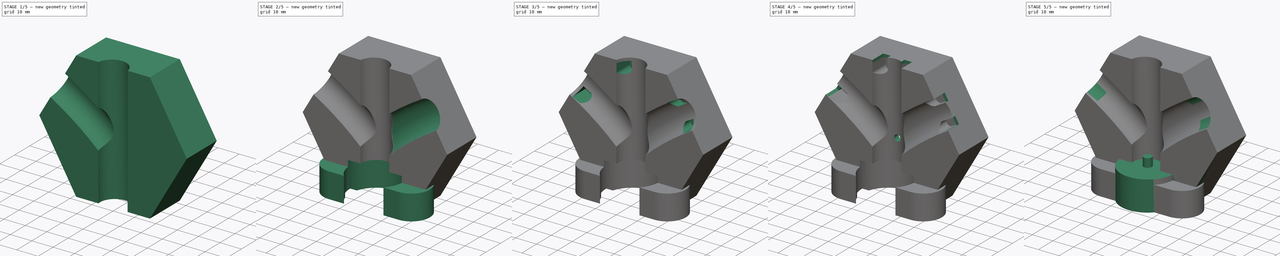
[diagram: build sequence overview — one tinted view per stage of 5, left to right]
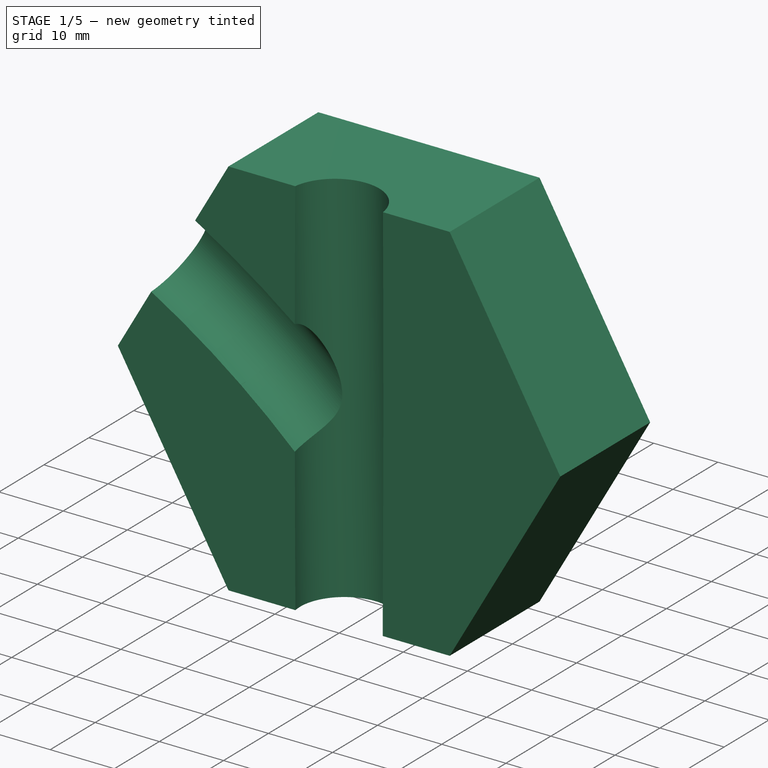
[diagram: stage 1 of 5 — iso view after this stage's code; geometry added in this stage tinted green]
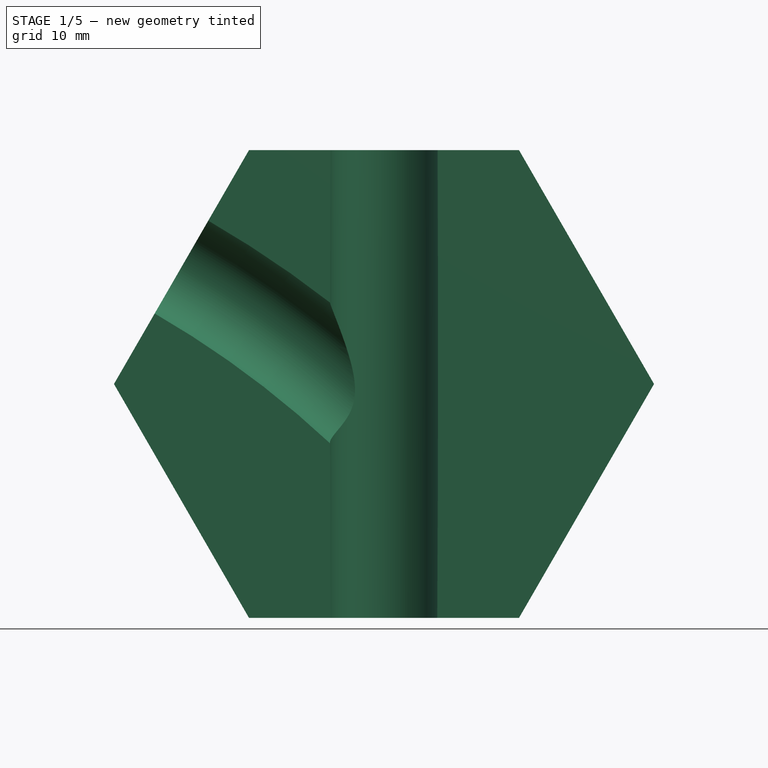
[diagram: stage 1 of 5 — front view after this stage's code; geometry added in this stage tinted green]
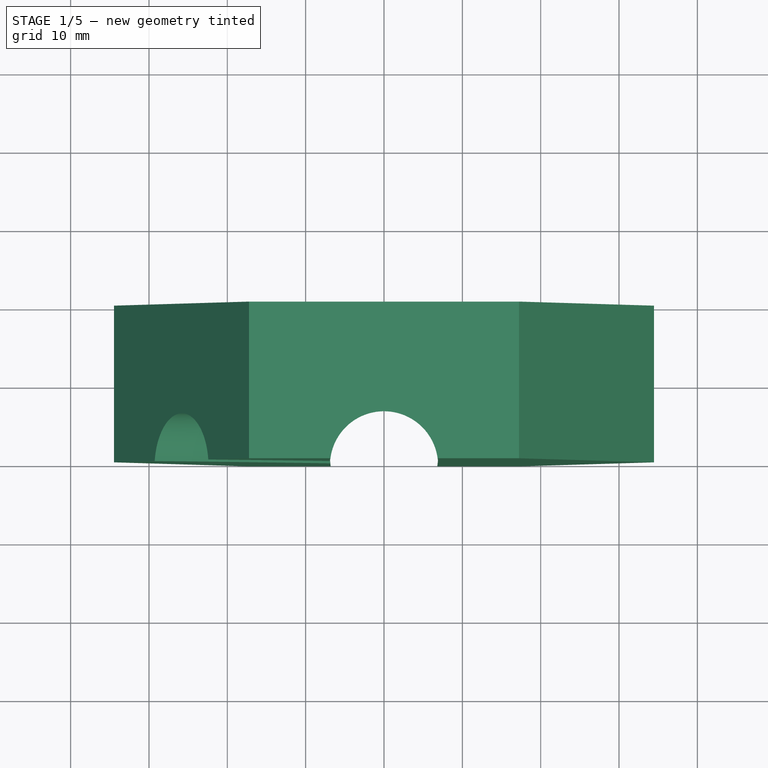
[diagram: stage 1 of 5 — top view after this stage's code; geometry added in this stage tinted green]
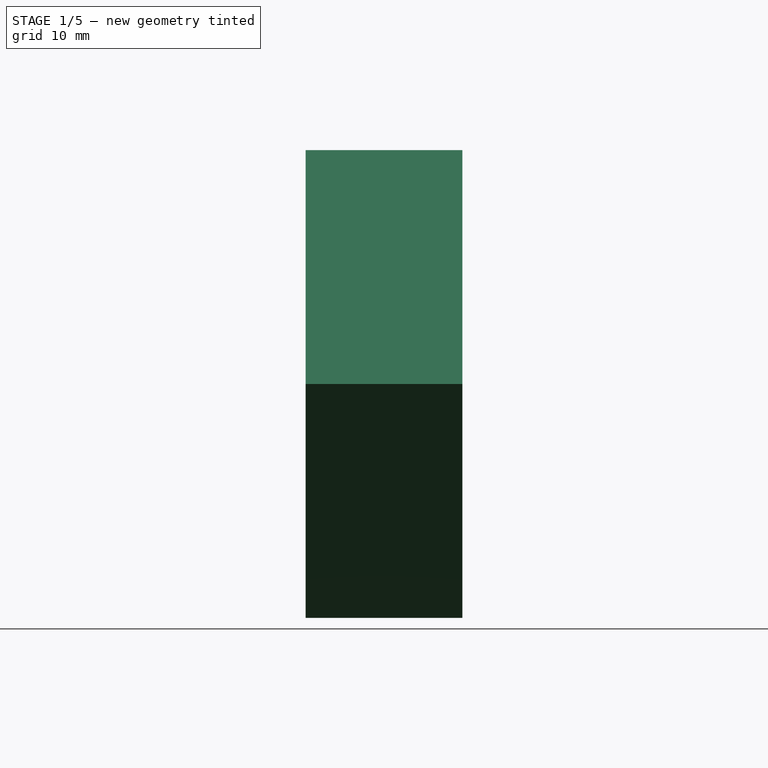
[diagram: stage 1 of 5 — right view after this stage's code; geometry added in this stage tinted green]
FCSTD DOCUMENT  (FreeCAD 0.19R24212 (Git))
Label: accel1
License: All rights reserved
LicenseURL: http://en.wikipedia.org/wiki/All_rights_reserved
objects: Sketcher::SketchObject×19, PartDesign::Pocket×9, PartDesign::Pad×5, PartDesign::SubtractivePipe×2, PartDesign::Body×2, PartDesign::Chamfer×1
note: 55 computed .brp shape members not serialized (recipe doc carries the construction recipe); baked Part::Feature solids carry a one-line shape summary decoded from their .brp

FEATURE [Sketcher::SketchObject] Sketch
  FullyConstrained = false
  MapMode = 5
  Placement = pos=(0,0,0) rot=(1,0,0;1.5708rad)
  Support = -> [XZ_Plane]
  sketch-geometry (7):
    g0: LineSegment StartX=34.4678 StartY=-3.6e-15 StartZ=0 EndX=17.2339 EndY=29.85 EndZ=0
    g1: LineSegment StartX=17.2339 StartY=29.85 StartZ=0 EndX=-17.2339 EndY=29.85 EndZ=0
    g2: LineSegment StartX=-17.2339 StartY=29.85 StartZ=0 EndX=-34.4678 EndY=3.6e-15 EndZ=0
    g3: LineSegment StartX=-34.4678 StartY=3.6e-15 StartZ=0 EndX=-17.2339 EndY=-29.85 EndZ=0
    g4: LineSegment StartX=-17.2339 StartY=-29.85 StartZ=0 EndX=17.2339 EndY=-29.85 EndZ=0
    g5: LineSegment StartX=17.2339 StartY=-29.85 StartZ=0 EndX=34.4678 EndY=-3.6e-15 EndZ=0
    g6: Circle CenterX=0 CenterY=0 CenterZ=0 NormalX=0 NormalY=0 NormalZ=1 AngleXU=0 Radius=34.4678
  constraints (16):
    c: Coincident(g0,g1)
    c: Coincident(g1,g2)
    c: Coincident(g2,g3)
    c: Coincident(g3,g4)
    c: Coincident(g4,g5)
    c: Coincident(g5,g0)
    c: Equal(g0, g1-g5) x5
    c: PointOnObject(g0,g6)
    c: PointOnObject(g1,g6)
    c: PointOnObject(g2,g6)
    c: PointOnObject(g3,g6)
    c: PointOnObject(g4,g6)
    c: PointOnObject(g5,g6)
    c: Coincident(g6,g-1)
    c: PointOnObject(g5,g-1)
    c: DistanceY(g4,g0) = 59.7
FEATURE [PartDesign::Pad] Pad
  Direction = (1,1,1)
  Length = 20
  Length2 = 100
  Midplane = true
  Placement = pos=(0,0,0) rot=(1,0,0;1.5708rad)
  Profile = -> Sketch
  Type = 0
FEATURE [Sketcher::SketchObject] Sketch001  label="Rinne1"
  AttachmentOffset = pos=(0,0,0) rot=(1,0,0;-0.034907rad)
  ExternalGeometry = -> [Pad]
  FullyConstrained = false
  MapMode = 5
  Placement = pos=(6.3e-15,0,29.85) rot=(0,0.017452,-0.999848;3.14159rad)
  Support = -> [Pad]
  sketch-geometry (2):
    g0: GeomPoint X=0 Y=4 Z=0
    g1: Circle CenterX=0 CenterY=10.9 CenterZ=0 NormalX=0 NormalY=0 NormalZ=1 AngleXU=0 Radius=6.9
  constraints (5):
    c: PointOnObject(g0,g-2)
    c: DistanceY(g-1,g0) = 4
    c: PointOnObject(g1,g-2)
    c: Diameter(g1) = 13.8
    c: PointOnObject(g0,g1)
FEATURE [Sketcher::SketchObject] Sketch002  label="Rinne2"
  FullyConstrained = false
  MapMode = 5
  Placement = pos=(-25.8509,1.7e-14,14.925) rot=(-0.5,0,0.866025;3.14159rad)
  sketch-geometry (2):
    g0: Circle CenterX=0 CenterY=10.9 CenterZ=0 NormalX=0 NormalY=0 NormalZ=1 AngleXU=0 Radius=6.9
    g1: GeomPoint X=0 Y=4 Z=0
  constraints (5):
    c: PointOnObject(g0,g-2)
    c: Diameter(g0) = 13.8
    c: PointOnObject(g1,g0)
    c: PointOnObject(g1,g-2)
    c: DistanceY(g-1,g1) = 4
FEATURE [PartDesign::Pocket] Pocket
  BaseFeature = -> Pad
  Length = 26
  Length2 = 100
  Midplane = true
  Placement = pos=(0,0,0) rot=(1,0,0;1.5708rad)
  Profile = -> Sketch001
  Type = 1
FEATURE [Sketcher::SketchObject] Sketch003  label="BogenRinne2"
  ExternalGeometry = -> [Sketch002]
  FullyConstrained = false
  MapMode = 5
  Placement = pos=(0,-10,2.2e-15) rot=(1,0,0;1.5708rad)
  Support = -> [Pocket]
  sketch-geometry (5):
    g0: ArcOfCircle CenterX=-90.6829 CenterY=-97.3674 CenterZ=0 NormalX=0 NormalY=0 NormalZ=1 AngleXU=0 Radius=129.664 StartAngle=0.796283 EndAngle=1.0472
    g1: LineSegment StartX=1.73965 StartY=-4.73326 StartZ=0 EndX=5.18896 EndY=-4.73326 EndZ=0
    g2: LineSegment StartX=5.18896 StartY=-4.73326 StartZ=0 EndX=5.18896 EndY=-11.1333 EndZ=0
    g3: LineSegment StartX=5.18896 StartY=-11.1333 StartZ=0 EndX=1.73965 EndY=-11.1333 EndZ=0
    g4: LineSegment StartX=1.73965 StartY=-11.1333 StartZ=0 EndX=1.73965 EndY=-4.73326 EndZ=0
  constraints (12):
    c: PointOnObject(g0,g-2)
    c: Symmetric(g-3,g-3,g0)
    c: Perpendicular(g0,g-3) = 1.5708
    c: Coincident(g1,g2)
    c: Coincident(g2,g3)
    c: Coincident(g3,g4)
    c: Coincident(g4,g1)
    c: Horizontal(g1)
    c: Horizontal(g3)
    c: Vertical(g2)
    c: Vertical(g4)
    c: DistanceY(g2,g1) = 6.4
FEATURE [PartDesign::SubtractivePipe] SubtractivePipe
  AuxilleryCurvelinear = true
  AuxillerySpineTangent = false
  BaseFeature = -> Pocket
  Binormal = (0,0,0)
  Mode = 0
  Placement = pos=(0,0,0) rot=(1,0,0;1.5708rad)
  Profile = -> Sketch002
  Spine = -> Sketch003 [Edge1]
  SpineTangent = false
  Transformation = 0
  Transition = 0
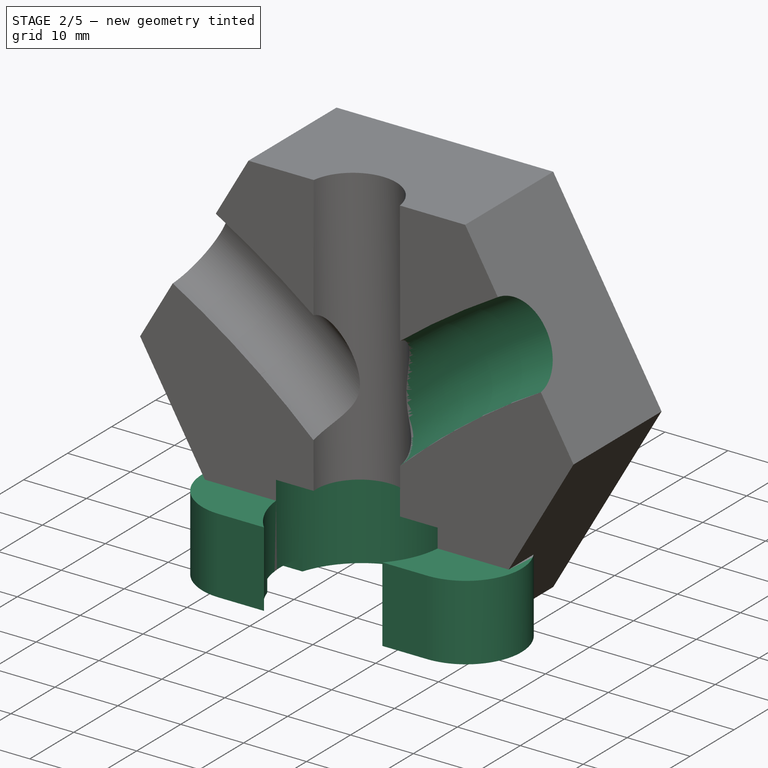
[diagram: stage 2 of 5 — iso view after this stage's code; geometry added in this stage tinted green]
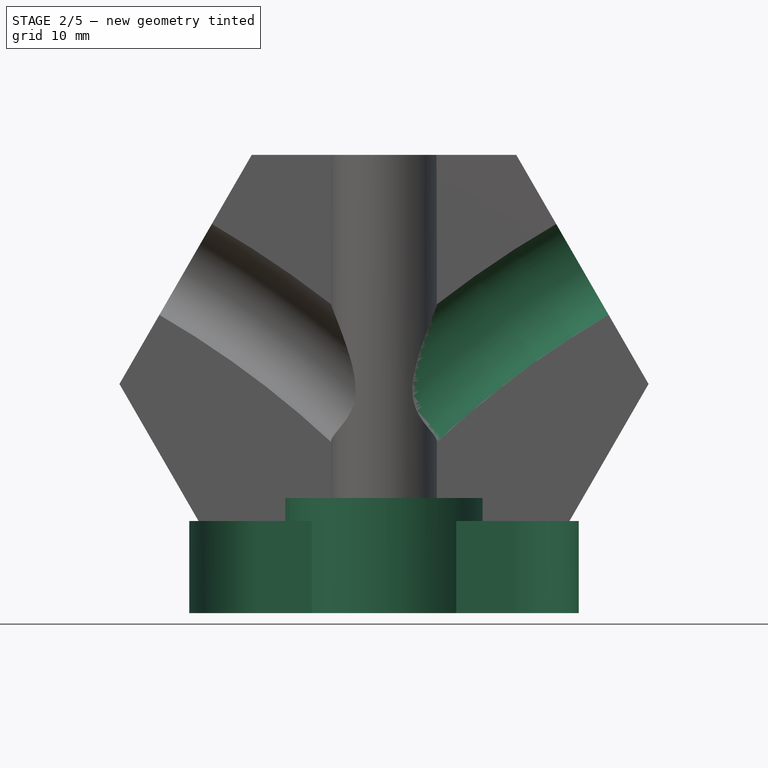
[diagram: stage 2 of 5 — front view after this stage's code; geometry added in this stage tinted green]
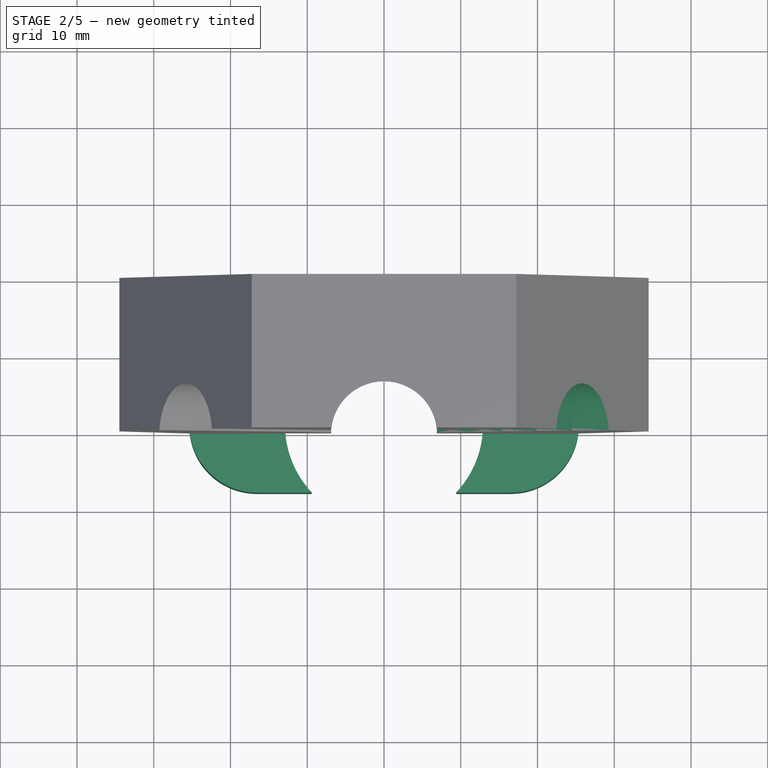
[diagram: stage 2 of 5 — top view after this stage's code; geometry added in this stage tinted green]
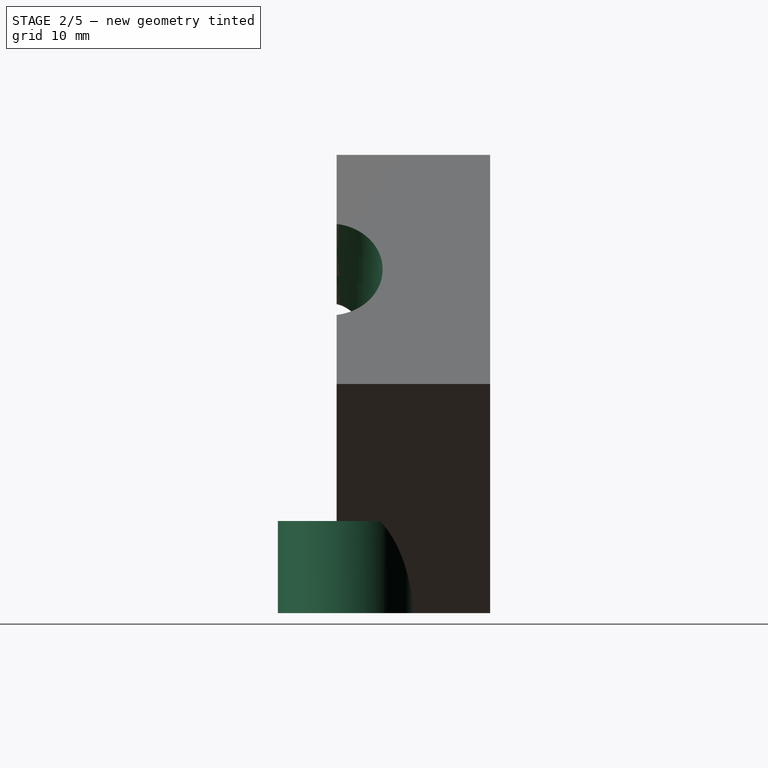
[diagram: stage 2 of 5 — right view after this stage's code; geometry added in this stage tinted green]
FEATURE [Sketcher::SketchObject] Sketch004  label="Rinne3"
  FullyConstrained = false
  MapMode = 5
  Placement = pos=(25.8509,0,14.925) rot=(0.5,0,0.866025;3.14159rad)
  Support = -> [SubtractivePipe]
  sketch-geometry (2):
    g0: Circle CenterX=0 CenterY=10.9 CenterZ=0 NormalX=0 NormalY=0 NormalZ=1 AngleXU=0 Radius=6.9
    g1: GeomPoint X=0 Y=4 Z=0
  constraints (5):
    c: PointOnObject(g0,g-2)
    c: Diameter(g0) = 13.8
    c: PointOnObject(g1,g0)
    c: PointOnObject(g1,g-2)
    c: DistanceY(g-1,g1) = 4
FEATURE [Sketcher::SketchObject] Sketch005  label="BogenRinne3"
  ExternalGeometry = -> [Sketch004,Sketch003]
  FullyConstrained = false
  MapMode = 5
  Placement = pos=(0,-10,2.2e-15) rot=(1,0,0;1.5708rad)
  Support = -> [SubtractivePipe]
  sketch-geometry (1):
    g0: ArcOfCircle CenterX=90.6829 CenterY=-97.3674 CenterZ=0 NormalX=0 NormalY=0 NormalZ=1 AngleXU=0 Radius=129.664 StartAngle=2.0944 EndAngle=2.34531
  constraints (3):
    c: Coincident(g0,g-4)
    c: Symmetric(g-3,g-3,g0)
    c: Perpendicular(g0,g-3)
FEATURE [PartDesign::SubtractivePipe] SubtractivePipe001
  AuxilleryCurvelinear = true
  AuxillerySpineTangent = false
  BaseFeature = -> SubtractivePipe
  Binormal = (0,0,0)
  Mode = 0
  Placement = pos=(0,0,0) rot=(1,0,0;1.5708rad)
  Profile = -> Sketch004
  Spine = -> Sketch005 [Edge1]
  SpineTangent = false
  Transformation = 0
  Transition = 0
FEATURE [Sketcher::SketchObject] Sketch006
  ExternalGeometry = -> [SubtractivePipe001]
  FullyConstrained = false
  MapMode = 5
  Placement = pos=(-6.3e-15,0,-29.85) rot=(1,0,0;3.14159rad)
  Support = -> [SubtractivePipe001]
  sketch-geometry (1):
    g0: Circle CenterX=0 CenterY=8.82187 CenterZ=0 NormalX=0 NormalY=0 NormalZ=1 AngleXU=0 Radius=12.9
  constraints (2):
    c: Diameter(g0) = 25.8
    c: Coincident(g0,g-3)
FEATURE [Sketcher::SketchObject] Sketch007
  ExternalGeometry = -> [Sketch006]
  FullyConstrained = false
  MapMode = 5
  Placement = pos=(-6.3e-15,0,-29.85) rot=(1,0,0;3.14159rad)
  Support = -> [SubtractivePipe001]
  expr: Constraints[12] = 36.6 - 3.5
  sketch-geometry (6):
    g0: ArcOfCircle CenterX=-16.55 CenterY=8.82187 CenterZ=0 NormalX=0 NormalY=0 NormalZ=1 AngleXU=0 Radius=4 StartAngle=1.5708 EndAngle=4.71239
    g1: ArcOfCircle CenterX=16.55 CenterY=8.82187 CenterZ=0 NormalX=0 NormalY=0 NormalZ=1 AngleXU=0 Radius=4 StartAngle=4.71239 EndAngle=7.85398
    g2: LineSegment StartX=-16.55 StartY=12.8219 StartZ=0 EndX=16.55 EndY=12.8219 EndZ=0
    g3: LineSegment StartX=-16.55 StartY=4.82187 StartZ=0 EndX=16.55 EndY=4.82187 EndZ=0
    g4: Circle CenterX=-16.55 CenterY=8.82187 CenterZ=0 NormalX=0 NormalY=0 NormalZ=1 AngleXU=0 Radius=1.75
    g5: Circle CenterX=16.55 CenterY=8.82187 CenterZ=0 NormalX=0 NormalY=0 NormalZ=1 AngleXU=0 Radius=1.75
  constraints (14):
    c: Horizontal(g0,g-3)
    c: Tangent(g0,g2) = 1.5708
    c: Coincident(g3,g0)
    c: Horizontal(g3)
    c: Horizontal(g2)
    c: Tangent(g1,g2) = 1.5708
    c: Tangent(g3,g1) = -1.5708
    c: Symmetric(g0,g1,g-3)
    c: Coincident(g4,g0)
    c: Coincident(g5,g1)
    c: Diameter(g5) = 3.5
    c: Diameter(g4) = 3.5
    c: DistanceX(g0,g1) = 33.1
    c: DistanceY(g1,g1) = 8
FEATURE [Sketcher::SketchObject] Sketch008
  ExternalGeometry = -> [Sketch007]
  FullyConstrained = false
  MapMode = 5
  Placement = pos=(-6e-15,7e-15,-29.85) rot=(1,0,0;3.14159rad)
  sketch-geometry (4):
    g0: ArcOfCircle CenterX=-16.55 CenterY=8.82187 CenterZ=0 NormalX=0 NormalY=0 NormalZ=1 AngleXU=0 Radius=8.82187 StartAngle=1.5708 EndAngle=4.71239
    g1: ArcOfCircle CenterX=16.55 CenterY=8.82187 CenterZ=0 NormalX=0 NormalY=0 NormalZ=1 AngleXU=0 Radius=8.82187 StartAngle=4.71239 EndAngle=7.85398
    g2: LineSegment StartX=-16.55 StartY=17.6437 StartZ=0 EndX=16.55 EndY=17.6437 EndZ=0
    g3: LineSegment StartX=-16.55 StartY=5.57527e-11 StartZ=0 EndX=16.55 EndY=0 EndZ=0
  constraints (9):
    c: Coincident(g3,g0)
    c: Tangent(g0,g3)
    c: Tangent(g2,g0) = 1.5708
    c: Coincident(g0,g-3)
    c: Coincident(g-4,g1)
    c: Tangent(g2,g1) = 1.5708
    c: Tangent(g3,g1) = -1.5708
    c: Horizontal(g2)
    c: PointOnObject(g1,g-1)
FEATURE [PartDesign::Pad] Pad001
  BaseFeature = -> SubtractivePipe001
  Direction = (1,1,1)
  Length = 12
  Length2 = 100
  Placement = pos=(0,0,0) rot=(1,0,0;1.5708rad)
  Profile = -> Sketch008
  Reversed = true
  Type = 0
FEATURE [PartDesign::Pocket] Pocket001
  BaseFeature = -> Pad001
  Length = 15
  Length2 = 100
  Placement = pos=(0,0,0) rot=(1,0,0;1.5708rad)
  Profile = -> Sketch006
  Type = 0
FEATURE [PartDesign::Pocket] Pocket002
  BaseFeature = -> Pocket001
  Length = 2
  Length2 = 100
  Placement = pos=(0,0,0) rot=(1,0,0;1.5708rad)
  Profile = -> Sketch007
  Type = 0
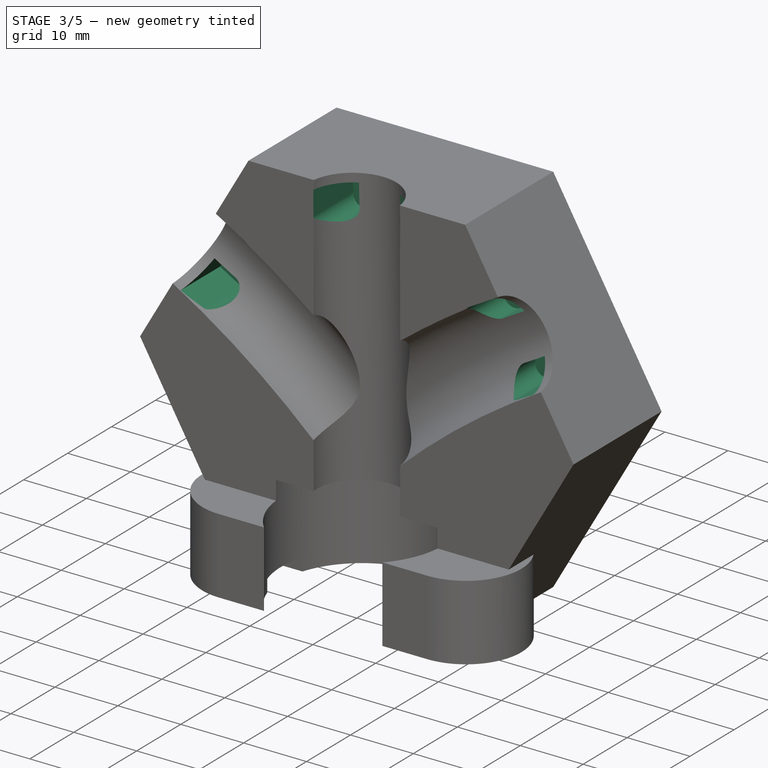
[diagram: stage 3 of 5 — iso view after this stage's code; geometry added in this stage tinted green]
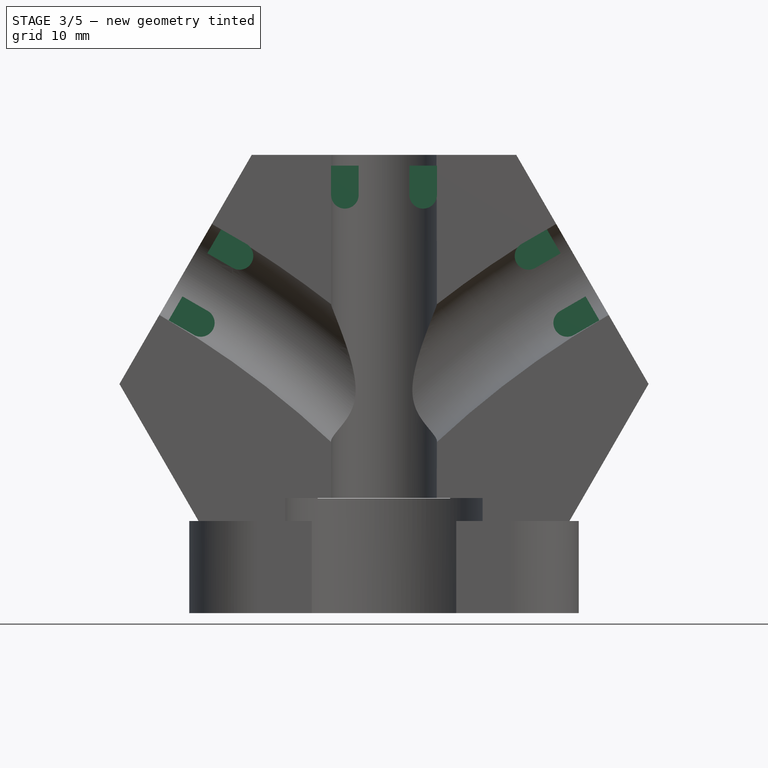
[diagram: stage 3 of 5 — front view after this stage's code; geometry added in this stage tinted green]
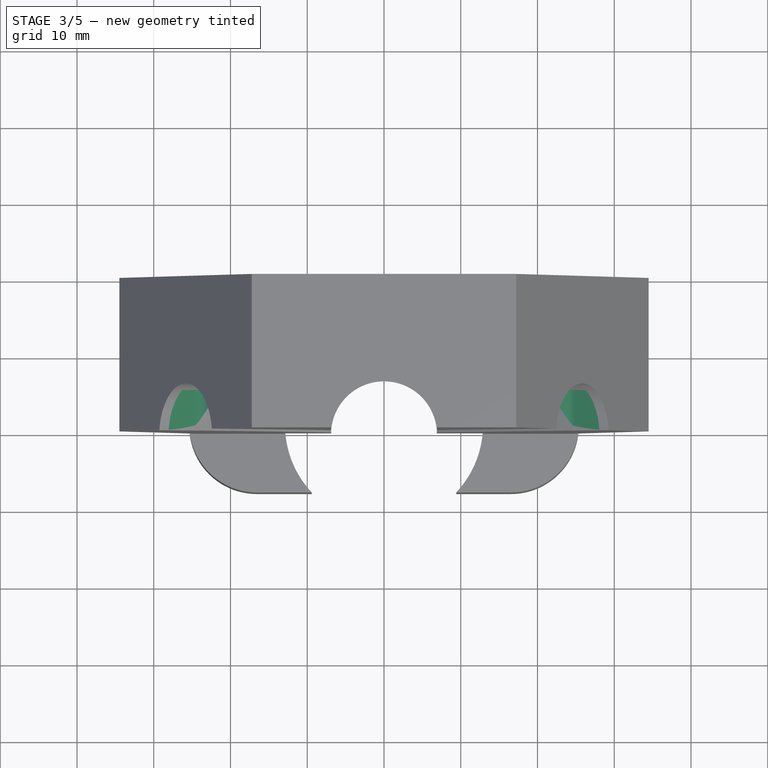
[diagram: stage 3 of 5 — top view after this stage's code; geometry added in this stage tinted green]
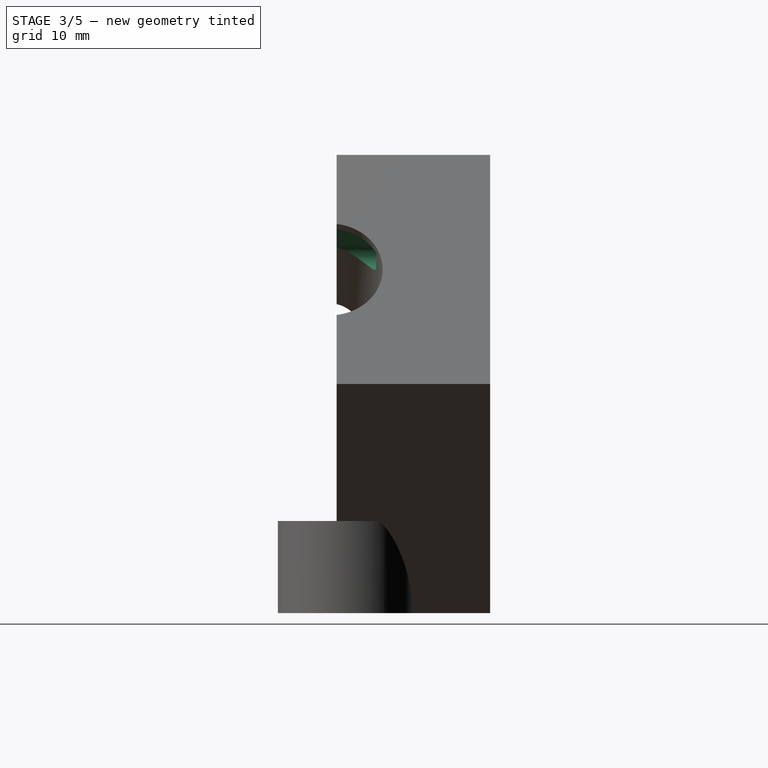
[diagram: stage 3 of 5 — right view after this stage's code; geometry added in this stage tinted green]
FEATURE [Sketcher::SketchObject] Sketch009
  ExternalGeometry = -> [Pocket002]
  FullyConstrained = false
  MapMode = 5
  Placement = pos=(0,0,-29.85) rot=(1,0,0;3.14159rad)
  Support = -> [Pocket002]
  sketch-geometry (2):
    g0: Circle CenterX=-16.55 CenterY=8.82187 CenterZ=0 NormalX=0 NormalY=0 NormalZ=1 AngleXU=0 Radius=1.35
    g1: Circle CenterX=16.55 CenterY=8.82187 CenterZ=0 NormalX=0 NormalY=0 NormalZ=1 AngleXU=0 Radius=1.35
  constraints (4):
    c: Coincident(g0,g-3)
    c: Coincident(g1,g-4)
    c: Diameter(g0) = 2.7
    c: Diameter(g1) = 2.7
FEATURE [PartDesign::Pocket] Pocket003
  BaseFeature = -> Pocket002
  Length = 11
  Length2 = 100
  Placement = pos=(0,0,0) rot=(1,0,0;1.5708rad)
  Profile = -> Sketch009
  Type = 0
FEATURE [Sketcher::SketchObject] Sketch014
  FullyConstrained = true
  MapMode = 5
  Placement = pos=(0,-10,2.2e-15) rot=(1,0,0;1.5708rad)
  Support = -> [Pad004]
FEATURE [PartDesign::Body] Body001
  Group = -> [Pad002,Pad003,Sketch013,Pad004,Sketch014]
  Origin = -> Origin001
  Tip = -> Pad004
FEATURE [Sketcher::SketchObject] Sketch015
  ExternalGeometry = -> [Pocket003]
  FullyConstrained = false
  MapMode = 5
  Placement = pos=(0,-10,2.2e-15) rot=(1,0,0;1.5708rad)
  Support = -> [Pocket003]
  expr: Constraints[8] = 5.6 - 1.8
  sketch-geometry (28):
    g0: LineSegment StartX=-6.9 StartY=28.45 StartZ=0 EndX=-3.3 EndY=28.45 EndZ=0
    g1: LineSegment StartX=-3.3 StartY=28.45 StartZ=0 EndX=-3.3 EndY=24.65 EndZ=0
    g2: LineSegment StartX=-6.9 StartY=28.45 StartZ=0 EndX=-6.9 EndY=24.65 EndZ=0
    g3: ArcOfCircle CenterX=-5.1 CenterY=24.65 CenterZ=0 NormalX=0 NormalY=0 NormalZ=1 AngleXU=0 Radius=1.8 StartAngle=3.14159 EndAngle=6.28319
    g4: LineSegment StartX=3.3 StartY=28.45 StartZ=0 EndX=6.9 EndY=28.45 EndZ=0
    g5: LineSegment StartX=6.9 StartY=28.45 StartZ=0 EndX=6.9 EndY=24.65 EndZ=0
    g6: LineSegment StartX=3.3 StartY=28.45 StartZ=0 EndX=3.3 EndY=24.65 EndZ=0
    g7: ArcOfCircle CenterX=5.1 CenterY=24.65 CenterZ=0 NormalX=0 NormalY=0 NormalZ=1 AngleXU=0 Radius=1.8 StartAngle=3.14159 EndAngle=6.28319
    g8: LineSegment StartX=21.2179 StartY=20.1495 StartZ=0 EndX=23.0179 EndY=17.0318 EndZ=0
    g9: LineSegment StartX=23.0179 StartY=17.0318 StartZ=0 EndX=19.727 EndY=15.1318 EndZ=0
    g10: LineSegment StartX=21.2179 StartY=20.1495 StartZ=0 EndX=17.927 EndY=18.2495 EndZ=0
    g11: ArcOfCircle CenterX=18.827 CenterY=16.6907 CenterZ=0 NormalX=0 NormalY=0 NormalZ=1 AngleXU=0 Radius=1.8 StartAngle=2.0944 EndAngle=5.23599
    g12: LineSegment StartX=17.927 StartY=18.2495 StartZ=0 EndX=22.4303 EndY=20.8495 EndZ=0
    g13: LineSegment StartX=26.2589 StartY=11.4182 StartZ=0 EndX=28.0589 EndY=8.30047 EndZ=0
    g14: LineSegment StartX=28.0589 StartY=8.30047 StartZ=0 EndX=24.7681 EndY=6.40047 EndZ=0
    g15: LineSegment StartX=26.2589 StartY=11.4182 StartZ=0 EndX=22.9681 EndY=9.51817 EndZ=0
    g16: ArcOfCircle CenterX=23.8681 CenterY=7.95932 CenterZ=0 NormalX=0 NormalY=0 NormalZ=1 AngleXU=0 Radius=1.8 StartAngle=2.0944 EndAngle=5.23599
    g17: LineSegment StartX=24.7681 StartY=6.40047 StartZ=0 EndX=29.2714 EndY=9.00047 EndZ=0
    g18: LineSegment StartX=-21.2179 StartY=20.1495 StartZ=0 EndX=-23.0179 EndY=17.0318 EndZ=0
    g19: LineSegment StartX=-23.0179 StartY=17.0318 StartZ=0 EndX=-19.727 EndY=15.1318 EndZ=0
    g20: LineSegment StartX=-21.2179 StartY=20.1495 StartZ=0 EndX=-17.927 EndY=18.2495 EndZ=0
    g21: ArcOfCircle CenterX=-18.827 CenterY=16.6907 CenterZ=0 NormalX=0 NormalY=0 NormalZ=1 AngleXU=0 Radius=1.8 StartAngle=4.18879 EndAngle=7.33038
    g22: LineSegment StartX=-17.927 StartY=18.2495 StartZ=0 EndX=-22.4303 EndY=20.8495 EndZ=0
    g23: LineSegment StartX=-26.2589 StartY=11.4182 StartZ=0 EndX=-28.0589 EndY=8.30047 EndZ=0
    g24: LineSegment StartX=-28.0589 StartY=8.30047 StartZ=0 EndX=-24.7681 EndY=6.40047 EndZ=0
    g25: LineSegment StartX=-26.2589 StartY=11.4182 StartZ=0 EndX=-22.9681 EndY=9.51817 EndZ=0
    g26: ArcOfCircle CenterX=-23.8681 CenterY=7.95932 CenterZ=0 NormalX=0 NormalY=0 NormalZ=1 AngleXU=0 Radius=1.8 StartAngle=4.18879 EndAngle=7.33038
    g27: LineSegment StartX=-24.7681 StartY=6.40047 StartZ=0 EndX=-29.2714 EndY=9.00047 EndZ=0
  constraints (70):
    c: Horizontal(g0)
    c: Coincident(g1,g0)
    c: Vertical(g1)
    c: Coincident(g2,g0)
    c: Vertical(g2)
    c: DistanceX(g0,g0) = 3.6
    c: Tangent(g3,g1) = 1.5708
    c: Tangent(g3,g2) = -1.5708
    c: DistanceY(g1,g0) = 3.8
    c: DistanceY(g0,g-3) = 1.4
    c: Vertical(g-3,g0)
    c: Horizontal(g4)
    c: Coincident(g5,g4)
    c: Vertical(g5)
    c: Coincident(g6,g4)
    c: Vertical(g6)
    c: Equal(g0,g4) = 3.6
    c: Tangent(g7,g5) = 1.5708
    c: Tangent(g7,g6) = -1.5708
    c: DistanceY(g5,g4) = 3.8
    c: Vertical(g4,g-3)
    c: Horizontal(g0,g4)
    c: Coincident(g9,g8)
    c: Coincident(g10,g8)
    c: Tangent(g11,g9) = 1.5708
    c: Tangent(g11,g10) = -1.5708
    c: Distance(g8,g8) = 3.6
    c: Distance(g8,g9) = 3.8
    c: Perpendicular(g10,g8)
    c: Equal(g9,g10)
    c: Parallel(g8,g-4)
    c: Coincident(g12,g10)
    c: Coincident(g12,g-4)
    c: PointOnObject(g8,g12)
    c: Distance(g8,g12) = 1.4
    c: Coincident(g14,g13)
    c: Coincident(g15,g13)
    c: Tangent(g16,g14) = 1.5708
    c: Tangent(g16,g15) = -1.5708
    c: Equal(g8,g13) = 3.6
    c: Distance(g13,g14) = 3.8
    c: Perpendicular(g15,g13)
    c: Equal(g14,g15)
    c: Coincident(g17,g14)
    c: Coincident(g17,g-4)
    c: Parallel(g13,g-4)
    c: PointOnObject(g13,g17)
    c: Distance(g13,g17) = 1.4
    c: Coincident(g19,g18)
    c: Coincident(g20,g18)
    c: Tangent(g21,g19) = -1.5708
    c: Tangent(g21,g20) = 1.5708
    c: Distance(g18,g18) = 3.6
    c: Distance(g18,g19) = 3.8
    c: Perpendicular(g20,g18)
    c: Equal(g19,g20)
    c: Coincident(g22,g20)
    c: PointOnObject(g18,g22)
    c: Distance(g18,g22) = 1.4
    c: Coincident(g24,g23)
    c: Coincident(g25,g23)
    c: Tangent(g26,g24) = -1.5708
    c: Tangent(g26,g25) = 1.5708
    c: Equal(g18,g23) = 3.6
    c: Distance(g23,g24) = 3.8
    c: Perpendicular(g25,g23)
    c: Equal(g24,g25)
    c: Coincident(g27,g24)
    c: PointOnObject(g23,g27)
    c: Distance(g23,g27) = 1.4
FEATURE [PartDesign::Pocket] Pocket004
  BaseFeature = -> Pocket003
  Length = 9
  Length2 = 100
  Placement = pos=(0,0,0) rot=(1,0,0;1.5708rad)
  Profile = -> Sketch015
  Type = 0
FEATURE [Sketcher::SketchObject] Sketch016
  ExternalGeometry = -> [Sketch003,Sketch005]
  FullyConstrained = false
  MapMode = 5
  Placement = pos=(0,-10,2.2e-15) rot=(1,0,0;1.5708rad)
  Support = -> [Pocket004]
  sketch-geometry (1):
    g0: Circle CenterX=0 CenterY=-4.68845 CenterZ=0 NormalX=0 NormalY=0 NormalZ=1 AngleXU=0 Radius=1.5
  constraints (2):
    c: Coincident(g0,g-4)
    c: Diameter(g0) = 3
FEATURE [Sketcher::SketchObject] Sketch017
  FullyConstrained = false
  MapMode = 5
  Placement = pos=(0,10,-1.11e-14) rot=(-1,0,0;1.5708rad)
  sketch-geometry (7):
    g0: LineSegment StartX=17.205 StartY=0 StartZ=0 EndX=8.60252 EndY=14.9 EndZ=0
    g1: LineSegment StartX=8.60252 StartY=14.9 StartZ=0 EndX=-8.60252 EndY=14.9 EndZ=0
    g2: LineSegment StartX=-8.60252 StartY=14.9 StartZ=0 EndX=-17.205 EndY=-3.6e-15 EndZ=0
    g3: LineSegment StartX=-17.205 StartY=-3.6e-15 StartZ=0 EndX=-8.60252 EndY=-14.9 EndZ=0
    g4: LineSegment StartX=-8.60252 StartY=-14.9 StartZ=0 EndX=8.60252 EndY=-14.9 EndZ=0
    g5: LineSegment StartX=8.60252 StartY=-14.9 StartZ=0 EndX=17.205 EndY=0 EndZ=0
    g6: Circle CenterX=0 CenterY=0 CenterZ=0 NormalX=0 NormalY=0 NormalZ=1 AngleXU=0 Radius=17.205
  constraints (16):
    c: Coincident(g0,g1)
    c: Coincident(g1,g2)
    c: Coincident(g2,g3)
    c: Coincident(g3,g4)
    c: Coincident(g4,g5)
    c: Coincident(g5,g0)
    c: Equal(g0, g1-g5) x5
    c: PointOnObject(g0,g6)
    c: PointOnObject(g1,g6)
    c: PointOnObject(g2,g6)
    c: PointOnObject(g3,g6)
    c: PointOnObject(g4,g6)
    c: PointOnObject(g5,g6)
    c: Coincident(g6,g-1)
    c: PointOnObject(g0,g-1)
    c: DistanceY(g4,g0) = 29.8
FEATURE [PartDesign::Pocket] Pocket005
  BaseFeature = -> Pocket004
  Length = 10
  Length2 = 100
  Placement = pos=(0,0,0) rot=(1,0,0;1.5708rad)
  Profile = -> Sketch017
  Type = 0
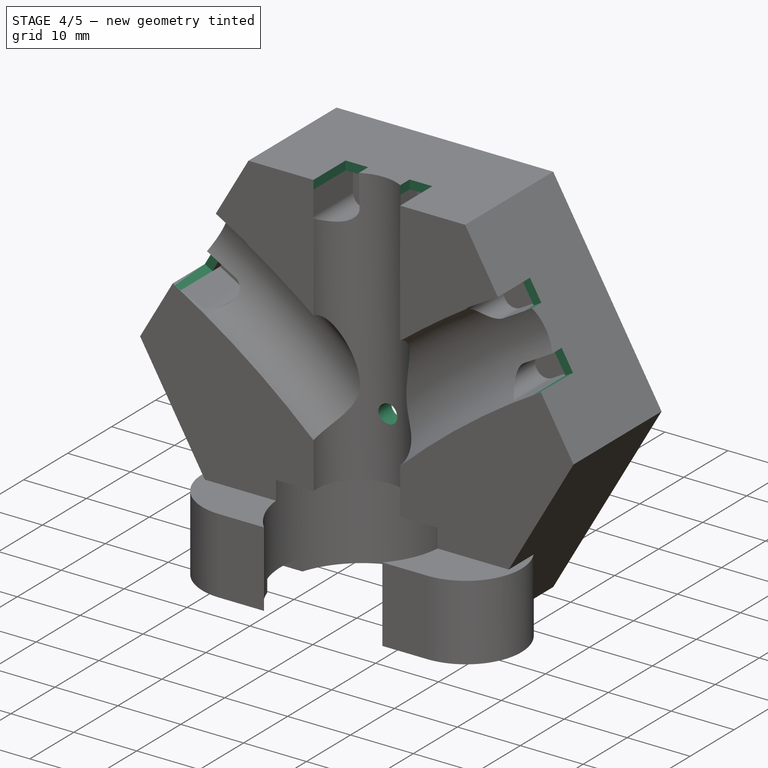
[diagram: stage 4 of 5 — iso view after this stage's code; geometry added in this stage tinted green]
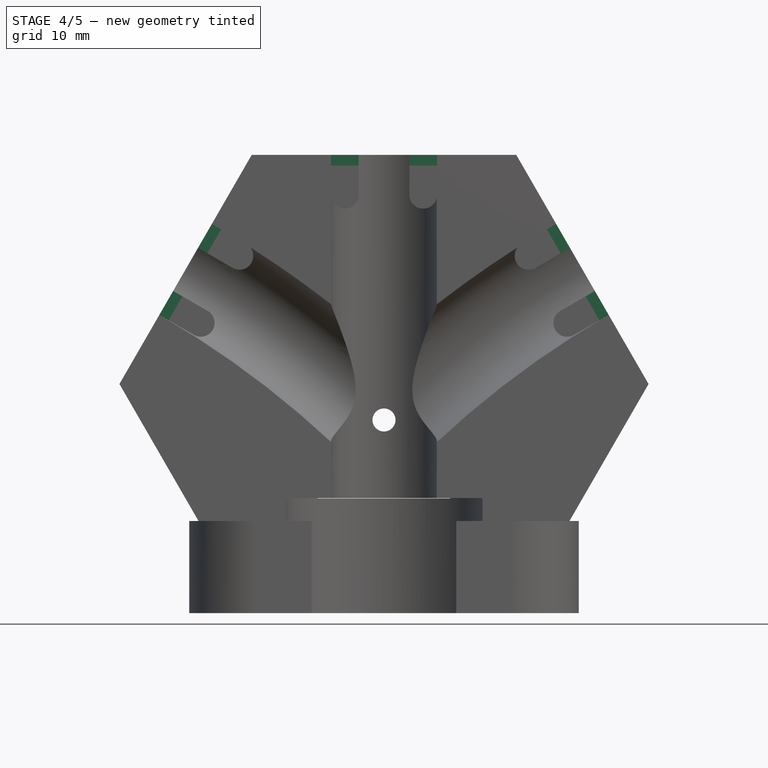
[diagram: stage 4 of 5 — front view after this stage's code; geometry added in this stage tinted green]
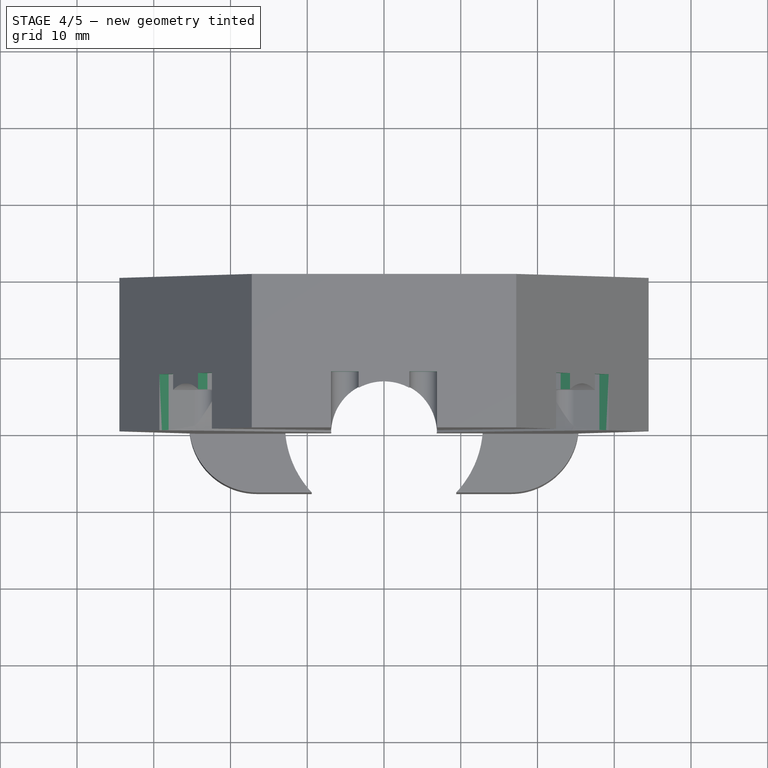
[diagram: stage 4 of 5 — top view after this stage's code; geometry added in this stage tinted green]
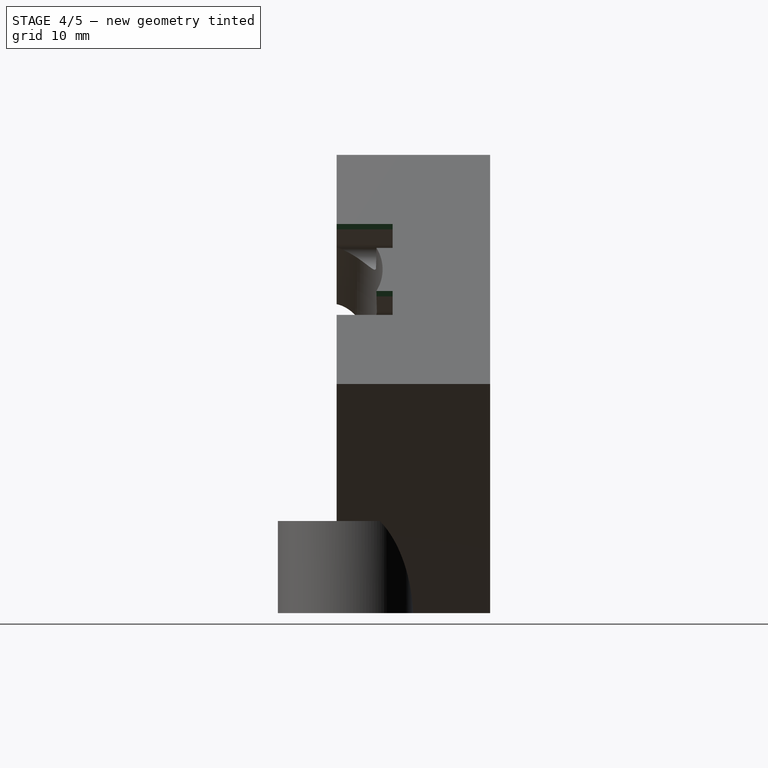
[diagram: stage 4 of 5 — right view after this stage's code; geometry added in this stage tinted green]
FEATURE [PartDesign::Pocket] Pocket006
  BaseFeature = -> Pocket005
  Length = 5
  Length2 = 100
  Placement = pos=(0,0,0) rot=(1,0,0;1.5708rad)
  Profile = -> Sketch016
  Type = 1
FEATURE [Sketcher::SketchObject] Sketch018
  ExternalGeometry = -> [Pocket006]
  FullyConstrained = false
  MapMode = 5
  Placement = pos=(-6.3e-15,0,-29.85) rot=(1,0,0;3.14159rad)
  Support = -> [Pocket006]
  sketch-geometry (4):
    g0: LineSegment StartX=-1.68926 StartY=-10 StartZ=0 EndX=-1.68926 EndY=-7.64149 EndZ=0
    g1: LineSegment StartX=1.68926 StartY=-10 StartZ=0 EndX=1.68926 EndY=-7.64149 EndZ=0
    g2: ArcOfCircle CenterX=0 CenterY=-7.64149 CenterZ=0 NormalX=0 NormalY=0 NormalZ=1 AngleXU=0 Radius=1.68926 StartAngle=0 EndAngle=3.14159
    g3: LineSegment StartX=-1.68926 StartY=-10 StartZ=0 EndX=1.68926 EndY=-10 EndZ=0
  constraints (9):
    c: PointOnObject(g0,g-3)
    c: Vertical(g0)
    c: PointOnObject(g1,g-3)
    c: Vertical(g1)
    c: PointOnObject(g2,g-2)
    c: Tangent(g2,g1) = -1.5708
    c: Tangent(g2,g0) = 1.5708
    c: Coincident(g3,g0)
    c: Coincident(g3,g1)
FEATURE [PartDesign::Pocket] Pocket007
  BaseFeature = -> Pocket006
  Length = 15
  Length2 = 100
  Placement = pos=(0,0,0) rot=(1,0,0;1.5708rad)
  Profile = -> Sketch018
  Type = 0
FEATURE [Sketcher::SketchObject] Sketch019
  ExternalGeometry = -> [Pocket007,Sketch015]
  FullyConstrained = false
  MapMode = 5
  Placement = pos=(0,-10,2.2e-15) rot=(1,0,0;1.5708rad)
  Support = -> [Pocket007]
  sketch-geometry (24):
    g0: LineSegment StartX=-29.2714 StartY=9.00047 StartZ=0 EndX=-28.0589 EndY=8.30047 EndZ=0
    g1: LineSegment StartX=-28.0589 StartY=8.30047 StartZ=0 EndX=-26.2589 EndY=11.4182 EndZ=0
    g2: LineSegment StartX=-26.2589 StartY=11.4182 StartZ=0 EndX=-27.4714 EndY=12.1182 EndZ=0
    g3: LineSegment StartX=-27.4714 StartY=12.1182 StartZ=0 EndX=-29.2714 EndY=9.00047 EndZ=0
    g4: LineSegment StartX=-23.0179 StartY=17.0318 StartZ=0 EndX=-24.2303 EndY=17.7318 EndZ=0
    g5: LineSegment StartX=-24.2303 StartY=17.7318 StartZ=0 EndX=-22.4303 EndY=20.8495 EndZ=0
    g6: LineSegment StartX=-22.4303 StartY=20.8495 StartZ=0 EndX=-21.2179 EndY=20.1495 EndZ=0
    g7: LineSegment StartX=-21.2179 StartY=20.1495 StartZ=0 EndX=-23.0179 EndY=17.0318 EndZ=0
    g8: LineSegment StartX=-6.9 StartY=28.45 StartZ=0 EndX=-6.9 EndY=29.85 EndZ=0
    g9: LineSegment StartX=-6.9 StartY=29.85 StartZ=0 EndX=-3.3 EndY=29.85 EndZ=0
    g10: LineSegment StartX=-3.3 StartY=29.85 StartZ=0 EndX=-3.3 EndY=28.45 EndZ=0
    g11: LineSegment StartX=-3.3 StartY=28.45 StartZ=0 EndX=-6.9 EndY=28.45 EndZ=0
    g12: LineSegment StartX=3.3 StartY=28.45 StartZ=0 EndX=3.3 EndY=29.85 EndZ=0
    g13: LineSegment StartX=3.3 StartY=29.85 StartZ=0 EndX=6.9 EndY=29.85 EndZ=0
    g14: LineSegment StartX=6.9 StartY=29.85 StartZ=0 EndX=6.9 EndY=28.45 EndZ=0
    g15: LineSegment StartX=6.9 StartY=28.45 StartZ=0 EndX=3.3 EndY=28.45 EndZ=0
    g16: LineSegment StartX=21.2179 StartY=20.1495 StartZ=0 EndX=22.4303 EndY=20.8495 EndZ=0
    g17: LineSegment StartX=22.4303 StartY=20.8495 StartZ=0 EndX=24.2303 EndY=17.7318 EndZ=0
    g18: LineSegment StartX=24.2303 StartY=17.7318 StartZ=0 EndX=23.0179 EndY=17.0318 EndZ=0
    g19: LineSegment StartX=23.0179 StartY=17.0318 StartZ=0 EndX=21.2179 EndY=20.1495 EndZ=0
    g20: LineSegment StartX=26.2589 StartY=11.4182 StartZ=0 EndX=27.4714 EndY=12.1182 EndZ=0
    g21: LineSegment StartX=27.4714 StartY=12.1182 StartZ=0 EndX=29.2714 EndY=9.00047 EndZ=0
    g22: LineSegment StartX=29.2714 StartY=9.00047 StartZ=0 EndX=28.0589 EndY=8.30047 EndZ=0
    g23: LineSegment StartX=28.0589 StartY=8.30047 StartZ=0 EndX=26.2589 EndY=11.4182 EndZ=0
  constraints (54):
    c: Coincident(g-7,g0)
    c: Coincident(g0,g-9)
    c: Coincident(g0,g1)
    c: Coincident(g1,g-9)
    c: Coincident(g1,g2)
    c: PointOnObject(g2,g-7)
    c: Coincident(g2,g3)
    c: Coincident(g3,g0)
    c: Coincident(g-8,g4)
    c: PointOnObject(g4,g-7)
    c: Coincident(g4,g5)
    c: Coincident(g5,g-7)
    c: Coincident(g5,g6)
    c: Coincident(g6,g-8)
    c: Coincident(g6,g7)
    c: Coincident(g7,g4)
    c: Coincident(g-4,g8)
    c: Coincident(g8,g-3)
    c: Coincident(g8,g9)
    c: PointOnObject(g9,g-3)
    c: Coincident(g9,g10)
    c: Coincident(g10,g-4)
    c: Coincident(g10,g11)
    c: Coincident(g11,g8)
    c: Coincident(g-10,g12)
    c: PointOnObject(g12,g-3)
    c: Coincident(g12,g13)
    c: Coincident(g13,g-3)
    c: Coincident(g13,g14)
    c: Coincident(g14,g-10)
    c: Coincident(g14,g15)
    c: Coincident(g15,g12)
    c: Coincident(g-6,g16)
    c: Coincident(g16,g-5)
    c: Coincident(g16,g17)
    c: PointOnObject(g17,g-5)
    c: Coincident(g17,g18)
    c: Coincident(g18,g-6)
    c: Coincident(g18,g19)
    c: Coincident(g19,g16)
    c: Coincident(g-11,g20)
    c: PointOnObject(g20,g-5)
    c: Coincident(g20,g21)
    c: Coincident(g21,g-5)
    c: Coincident(g21,g22)
    c: Coincident(g22,g-11)
    c: Coincident(g22,g23)
    c: Coincident(g23,g20)
    c: Parallel(g2,g0)
    c: Parallel(g6,g4)
    c: Parallel(g22,g20)
    c: Parallel(g18,g16)
    c: Parallel(g12,g14)
    c: Parallel(g10,g8)
FEATURE [PartDesign::Pocket] Pocket008
  BaseFeature = -> Pocket007
  Length = 7.3
  Length2 = 100
  Placement = pos=(0,0,0) rot=(1,0,0;1.5708rad)
  Profile = -> Sketch019
  Type = 0
FEATURE [PartDesign::Chamfer] Chamfer
  Angle = 45
  Base = -> Pocket008 [Edge20,Edge21,Edge19,Edge18,Edge17,Edge16,Edge22]
  BaseFeature = -> Pocket008
  ChamferType = 0
  FlipDirection = false
  Placement = pos=(0,0,0) rot=(1,0,0;1.5708rad)
  Size = 0.5
  Size2 = 1
  SupportTransform = false
FEATURE [PartDesign::Body] Body
  Group = -> [Sketch,Pad,Sketch001,Sketch002,Pocket,Sketch003,SubtractivePipe,Sketch008,Sketch004,Sketch005,SubtractivePipe001,Sketch006,Sketch007,Pad001,Pocket001,Pocket002,Sketch009,Pocket003,Sketch015,Pocket004,Sketch016,Sketch017,Pocket005,Pocket006,Sketch018,Pocket007,Sketch019,Pocket008,Chamfer]
  Origin = -> Origin
  Tip = -> Chamfer
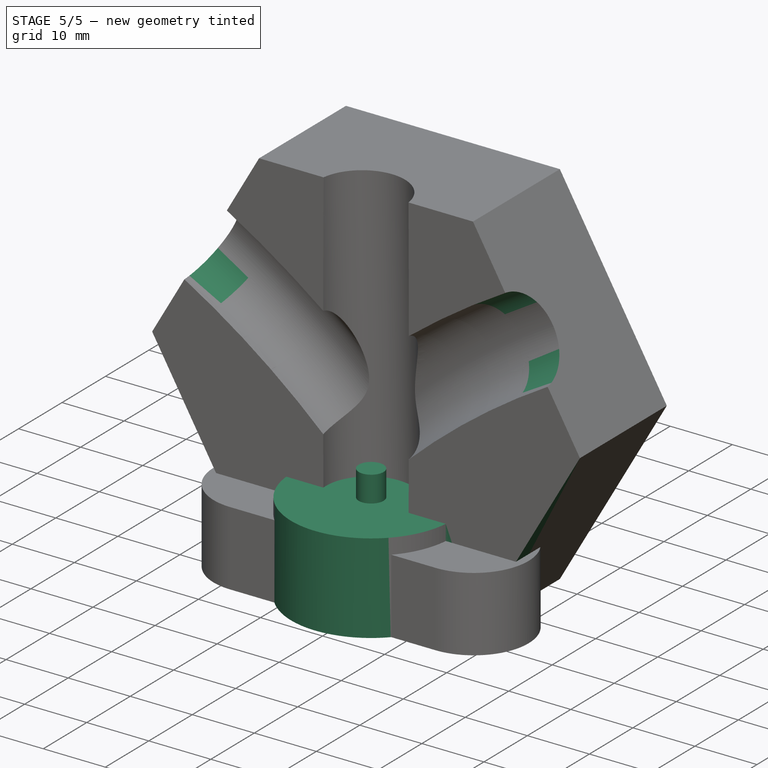
[diagram: stage 5 of 5 — iso view after this stage's code; geometry added in this stage tinted green]
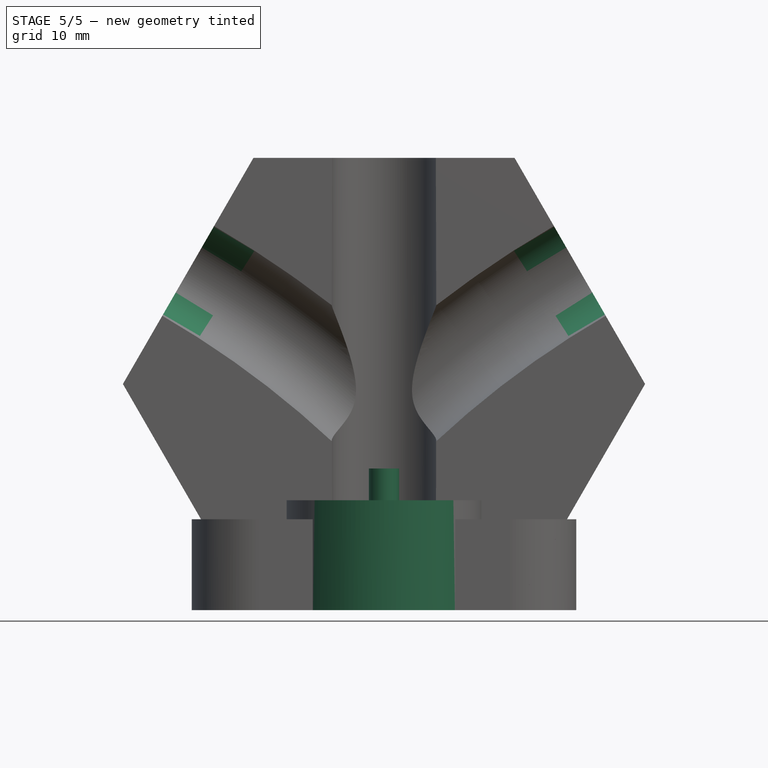
[diagram: stage 5 of 5 — front view after this stage's code; geometry added in this stage tinted green]
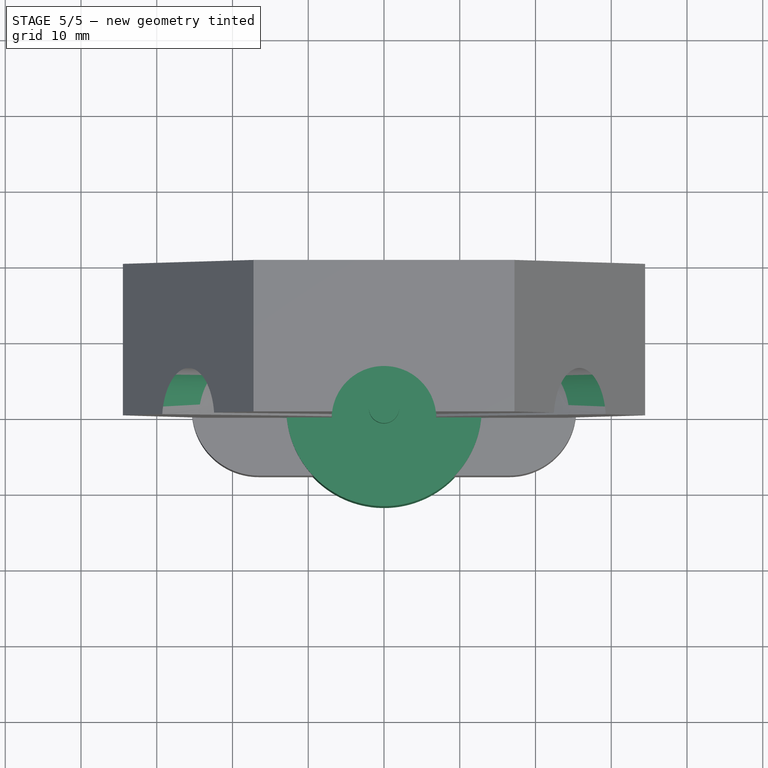
[diagram: stage 5 of 5 — top view after this stage's code; geometry added in this stage tinted green]
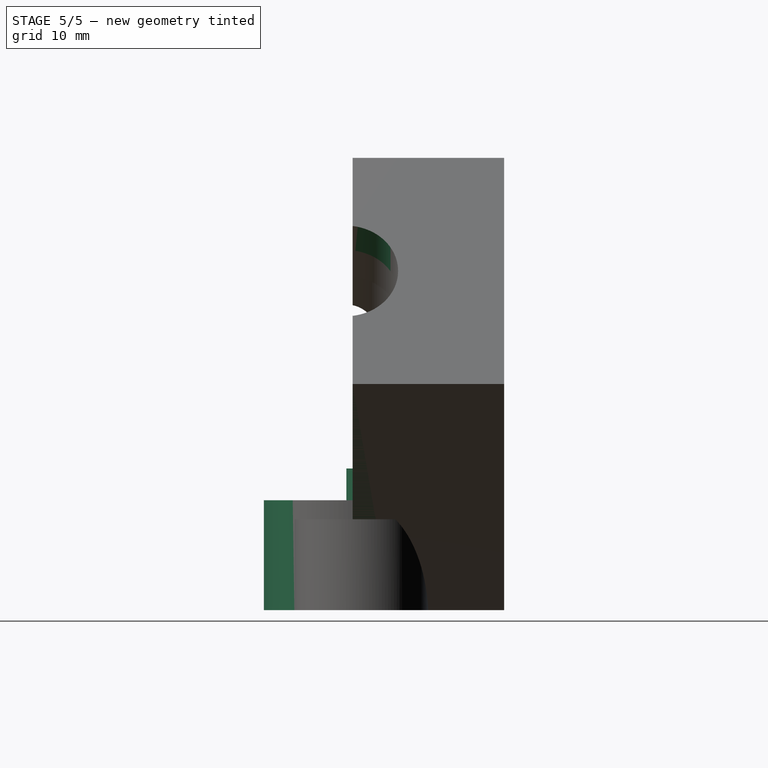
[diagram: stage 5 of 5 — right view after this stage's code; geometry added in this stage tinted green]
FEATURE [Sketcher::SketchObject] Sketch011
  ExternalGeometry = -> [SubtractivePipe001]
  FullyConstrained = false
  MapMode = 5
  Placement = pos=(-6.3e-15,0,-29.85) rot=(1,0,0;3.14159rad)
  Support = -> [SubtractivePipe001]
  sketch-geometry (1):
    g0: Circle CenterX=0 CenterY=8.82187 CenterZ=0 NormalX=0 NormalY=0 NormalZ=1 AngleXU=0 Radius=12.9
  constraints (2):
    c: Diameter(g0) = 25.8
    c: Coincident(g0,g-3)
FEATURE [Sketcher::SketchObject] Sketch012
  ExternalGeometry = -> [Sketch006]
  FullyConstrained = false
  MapMode = 5
  Placement = pos=(-6.3e-15,0,-29.85) rot=(1,0,0;3.14159rad)
  Support = -> [SubtractivePipe001]
  expr: Constraints[12] = 36.6 - 3.5
  sketch-geometry (6):
    g0: ArcOfCircle CenterX=-16.55 CenterY=8.82187 CenterZ=0 NormalX=0 NormalY=0 NormalZ=1 AngleXU=0 Radius=4 StartAngle=1.5708 EndAngle=4.71239
    g1: ArcOfCircle CenterX=16.55 CenterY=8.82187 CenterZ=0 NormalX=0 NormalY=0 NormalZ=1 AngleXU=0 Radius=4 StartAngle=4.71239 EndAngle=7.85398
    g2: LineSegment StartX=-16.55 StartY=12.8219 StartZ=0 EndX=16.55 EndY=12.8219 EndZ=0
    g3: LineSegment StartX=-16.55 StartY=4.82187 StartZ=0 EndX=16.55 EndY=4.82187 EndZ=0
    g4: Circle CenterX=-16.55 CenterY=8.82187 CenterZ=0 NormalX=0 NormalY=0 NormalZ=1 AngleXU=0 Radius=1.75
    g5: Circle CenterX=16.55 CenterY=8.82187 CenterZ=0 NormalX=0 NormalY=0 NormalZ=1 AngleXU=0 Radius=1.75
  constraints (14):
    c: Horizontal(g0,g-3)
    c: Tangent(g0,g2) = 1.5708
    c: Coincident(g3,g0)
    c: Horizontal(g3)
    c: Horizontal(g2)
    c: Tangent(g1,g2) = 1.5708
    c: Tangent(g3,g1) = -1.5708
    c: Symmetric(g0,g1,g-3)
    c: Coincident(g4,g0)
    c: Coincident(g5,g1)
    c: Diameter(g5) = 3.5
    c: Diameter(g4) = 3.5
    c: DistanceX(g0,g1) = 33.1
    c: DistanceY(g1,g1) = 8
FEATURE [PartDesign::Pad] Pad002
  Direction = (1,1,1)
  Length = 2
  Length2 = 100
  Placement = pos=(0,0,0) rot=(1,0,0;1.5708rad)
  Profile = -> Sketch012
  Reversed = true
  Type = 0
FEATURE [PartDesign::Pad] Pad003
  BaseFeature = -> Pad002
  Direction = (1,1,1)
  Length = 14.5
  Length2 = 100
  Placement = pos=(0,0,0) rot=(1,0,0;1.5708rad)
  Profile = -> Sketch011
  Reversed = true
  Type = 0
FEATURE [Sketcher::SketchObject] Sketch013
  ExternalGeometry = -> [Pad003]
  FullyConstrained = false
  MapMode = 5
  Placement = pos=(-5.4e-15,-9.6e-15,-29.85) rot=(1,0,0;3.14159rad)
  Support = -> [Pad003]
  sketch-geometry (1):
    g0: Circle CenterX=0 CenterY=8.82187 CenterZ=0 NormalX=0 NormalY=0 NormalZ=1 AngleXU=0 Radius=2
  constraints (2):
    c: Coincident(g0,g-3)
    c: Radius(g0) = 2
FEATURE [PartDesign::Pad] Pad004
  BaseFeature = -> Pad003
  Direction = (1,1,1)
  Length = 18.7
  Length2 = 100
  Placement = pos=(0,0,0) rot=(1,0,0;1.5708rad)
  Profile = -> Sketch013
  Reversed = true
  Type = 0
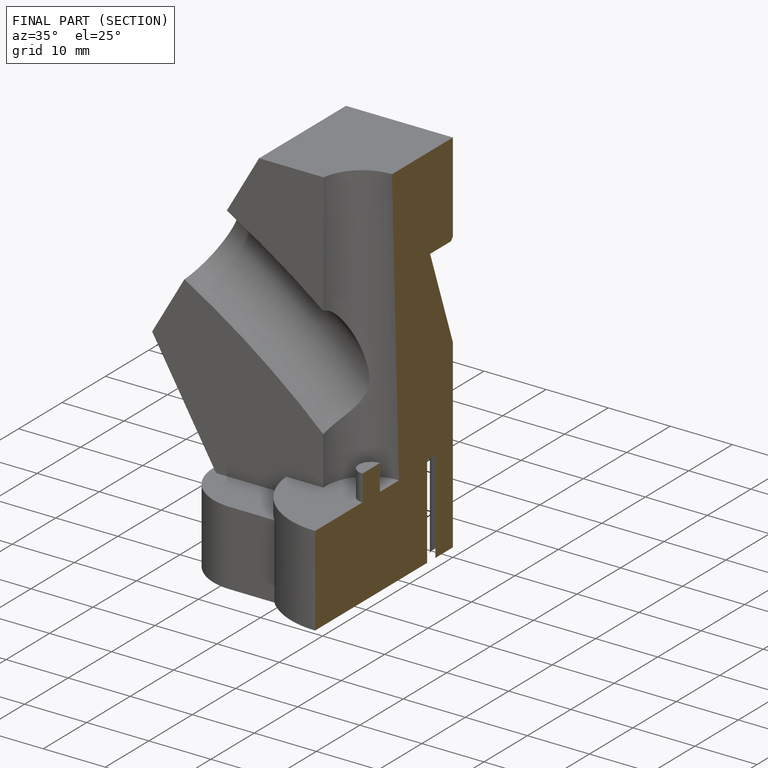
[diagram: finished part — half-section view (interior)]
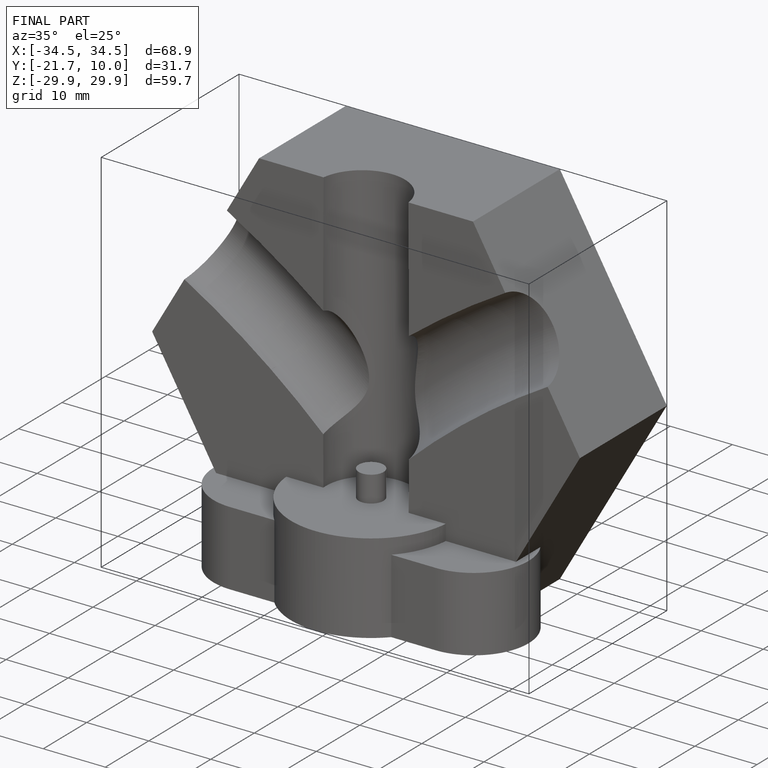
[diagram: finished part — iso view with bounding-box wireframe]
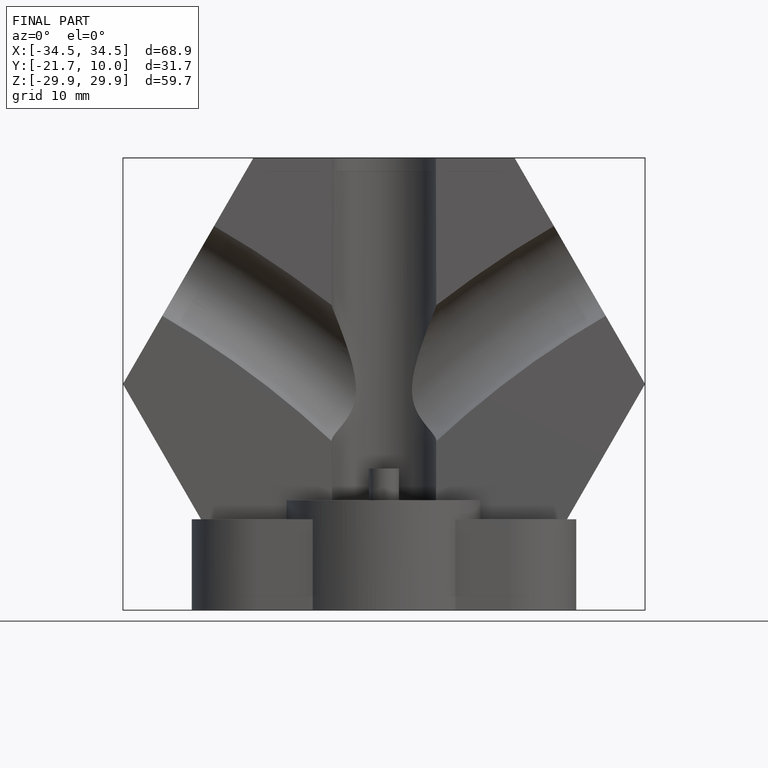
[diagram: finished part — front view with bounding-box wireframe]
